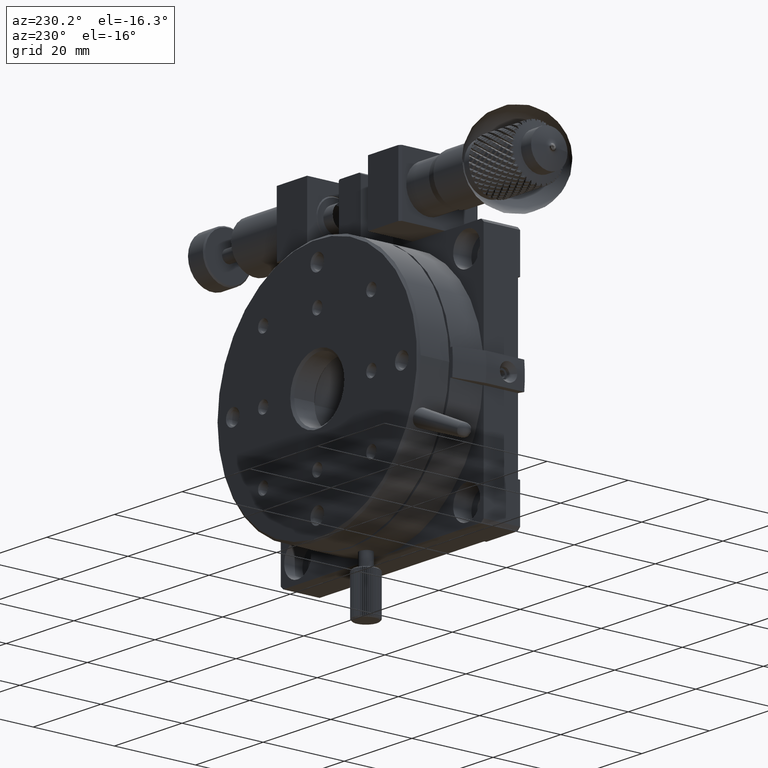
[diagram: clean part render]
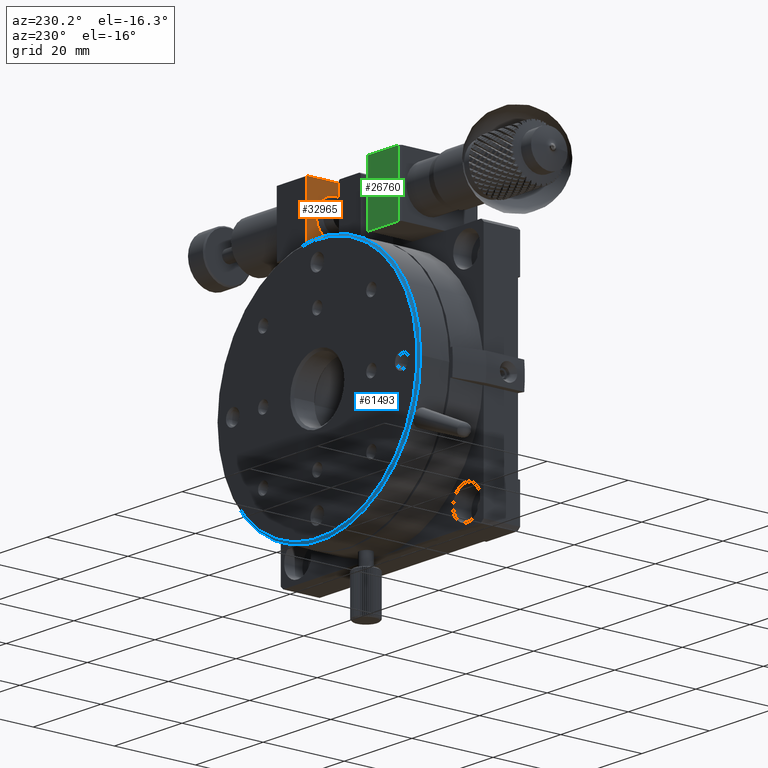
[diagram: same view with three faces highlighted in distinct colors, each labeled with its STEP entity id]
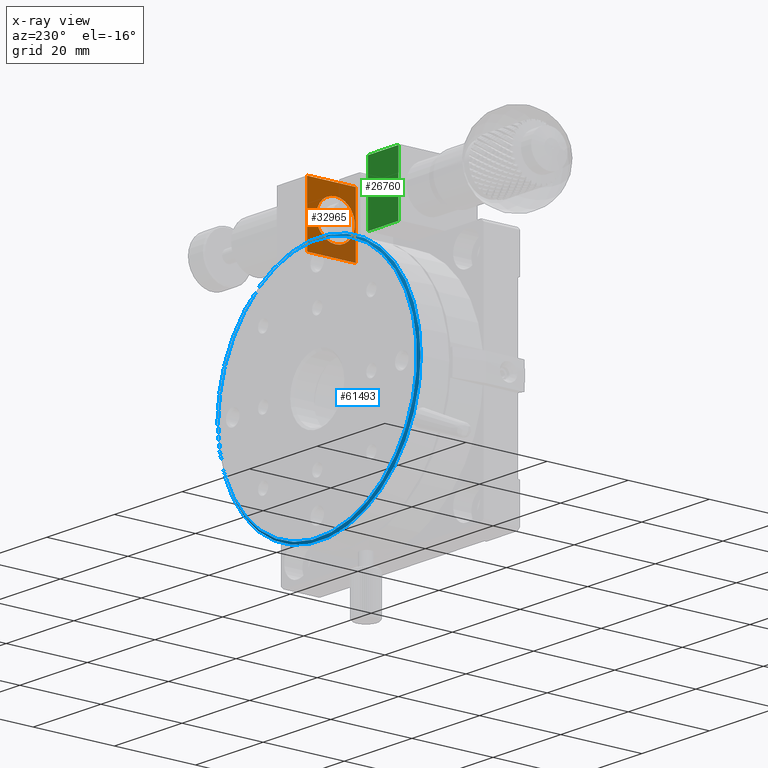
[diagram: x-ray of the same camera — body ghosted, the three highlighted faces saturated]
A machine part, auxiliary view with three faces highlighted in distinct colors.
The next image is the same camera in x-ray (body ghosted, the three faces saturated) — at least one of them is partly hidden behind the body in this view.
Their STEP definitions:

[orange] entity #32965 — the highlighted planar face has unit normal (1, 0, 0).
#956 = ORIENTED_EDGE ( 'NONE', *, *, #91410, .F. ) ;
#7555 = CARTESIAN_POINT ( 'NONE',  ( 39.00000000000000000, 13.00000000000000178, 7.500000000000000000 ) ) ;
#8267 = DIRECTION ( 'NONE',  ( -0.000000000000000000, -0.000000000000000000, 1.000000000000000000 ) ) ;
#9976 = VECTOR ( 'NONE', #70197, 1000.000000000000000 ) ;
#12858 = CARTESIAN_POINT ( 'NONE',  ( 39.00000000000000000, 8.000000000000000000, 0.000000000000000000 ) ) ;
#22511 = CARTESIAN_POINT ( 'NONE',  ( 39.00000000000000000, 8.000000000000000000, 15.00000000000000000 ) ) ;
#23106 = VERTEX_POINT ( 'NONE', #37156 ) ;
#27521 = CARTESIAN_POINT ( 'NONE',  ( 39.00000000000000000, 8.000000000000000000, 15.00000000000000000 ) ) ;
#28959 = FACE_BOUND ( 'NONE', #89245, .T. ) ;
#29871 = DIRECTION ( 'NONE',  ( 1.000000000000000000, 0.000000000000000000, 0.000000000000000000 ) ) ;
#32662 = VERTEX_POINT ( 'NONE', #12858 ) ;
#32965 = ADVANCED_FACE ( 'NONE', ( #35940, #28959 ), #85580, .F. ) ;
#33959 = EDGE_CURVE ( 'NONE', #63933, #23106, #51982, .T. ) ;
#35923 = ORIENTED_EDGE ( 'NONE', *, *, #75229, .F. ) ;
#35940 = FACE_OUTER_BOUND ( 'NONE', #78564, .T. ) ;
#36237 = CARTESIAN_POINT ( 'NONE',  ( 39.00000000000000000, 20.00000000000000000, 0.000000000000000000 ) ) ;
#36907 = CARTESIAN_POINT ( 'NONE',  ( 39.00000000000000000, 0.000000000000000000, 15.00000000000000000 ) ) ;
#37112 = AXIS2_PLACEMENT_3D ( 'NONE', #7555, #57197, #37223 ) ;
#37156 = CARTESIAN_POINT ( 'NONE',  ( 39.00000000000000000, 20.00000000000000000, 0.000000000000000000 ) ) ;
#37223 = DIRECTION ( 'NONE',  ( 0.000000000000000000, 0.000000000000000000, -1.000000000000000000 ) ) ;
#39137 = LINE ( 'NONE', #27521, #9976 ) ;
#44689 = AXIS2_PLACEMENT_3D ( 'NONE', #57719, #29871, #58161 ) ;
#44869 = ORIENTED_EDGE ( 'NONE', *, *, #82237, .F. ) ;
#45004 = DIRECTION ( 'NONE',  ( -0.000000000000000000, 1.000000000000000000, 0.000000000000000000 ) ) ;
#51597 = CARTESIAN_POINT ( 'NONE',  ( 39.00000000000000000, 13.00000000000000178, 2.750000000000000000 ) ) ;
#51982 = LINE ( 'NONE', #36237, #60920 ) ;
#54965 = CARTESIAN_POINT ( 'NONE',  ( 39.00000000000000000, 20.00000000000000000, 15.00000000000000000 ) ) ;
#56623 = CARTESIAN_POINT ( 'NONE',  ( 39.00000000000000000, 20.00000000000000000, 0.000000000000000000 ) ) ;
#56664 = VECTOR ( 'NONE', #73510, 1000.000000000000000 ) ;
#57197 = DIRECTION ( 'NONE',  ( -1.000000000000000000, -0.000000000000000000, -0.000000000000000000 ) ) ;
#57719 = CARTESIAN_POINT ( 'NONE',  ( 39.00000000000000000, 20.00000000000000000, 15.00000000000000000 ) ) ;
#57789 = VECTOR ( 'NONE', #8267, 1000.000000000000000 ) ;
#58161 = DIRECTION ( 'NONE',  ( 0.000000000000000000, 0.000000000000000000, -1.000000000000000000 ) ) ;
#60920 = VECTOR ( 'NONE', #45004, 1000.000000000000000 ) ;
#61205 = CARTESIAN_POINT ( 'NONE',  ( 39.00000000000000000, 9.000000000000001776, 0.000000000000000000 ) ) ;
#63584 = VERTEX_POINT ( 'NONE', #54965 ) ;
#63933 = VERTEX_POINT ( 'NONE', #61205 ) ;
#65080 = VERTEX_POINT ( 'NONE', #22511 ) ;
#65657 = LINE ( 'NONE', #36907, #56664 ) ;
#67396 = EDGE_CURVE ( 'NONE', #32662, #65080, #39137, .T. ) ;
#69625 = LINE ( 'NONE', #56623, #83028 ) ;
#69990 = ORIENTED_EDGE ( 'NONE', *, *, #85010, .F. ) ;
#70068 = DIRECTION ( 'NONE',  ( -0.000000000000000000, 1.000000000000000000, 0.000000000000000000 ) ) ;
#70197 = DIRECTION ( 'NONE',  ( -0.000000000000000000, 0.000000000000000000, 1.000000000000000000 ) ) ;
#73510 = DIRECTION ( 'NONE',  ( 0.000000000000000000, -1.000000000000000000, -0.000000000000000000 ) ) ;
#74138 = ORIENTED_EDGE ( 'NONE', *, *, #67396, .T. ) ;
#75229 = EDGE_CURVE ( 'NONE', #23106, #63584, #85324, .T. ) ;
#77126 = CIRCLE ( 'NONE', #37112, 4.750000000000000000 ) ;
#77889 = CARTESIAN_POINT ( 'NONE',  ( 39.00000000000000000, 20.00000000000000000, 15.00000000000000000 ) ) ;
#78564 = EDGE_LOOP ( 'NONE', ( #44869, #74138, #956, #35923, #82134 ) ) ;
#82134 = ORIENTED_EDGE ( 'NONE', *, *, #33959, .F. ) ;
#82237 = EDGE_CURVE ( 'NONE', #32662, #63933, #69625, .T. ) ;
#83028 = VECTOR ( 'NONE', #70068, 1000.000000000000000 ) ;
#85010 = EDGE_CURVE ( 'NONE', #88227, #88227, #77126, .T. ) ;
#85324 = LINE ( 'NONE', #77889, #57789 ) ;
#85580 = PLANE ( 'NONE',  #44689 ) ;
#88227 = VERTEX_POINT ( 'NONE', #51597 ) ;
#89245 = EDGE_LOOP ( 'NONE', ( #69990 ) ) ;
#91410 = EDGE_CURVE ( 'NONE', #63584, #65080, #65657, .T. ) ;

[blue] entity #61493 — the highlighted conical surface has half-angle 45 deg.
#2999 = AXIS2_PLACEMENT_3D ( 'NONE', #13391, #69988, #27769 ) ;
#7076 = CARTESIAN_POINT ( 'NONE',  ( 59.50000000000000711, 24.99999999999999645, -30.00000000000000000 ) ) ;
#7552 = DIRECTION ( 'NONE',  ( 0.000000000000000000, -1.000000000000000000, 0.000000000000000000 ) ) ;
#9626 = EDGE_LOOP ( 'NONE', ( #31565 ) ) ;
#11108 = ORIENTED_EDGE ( 'NONE', *, *, #77148, .T. ) ;
#13391 = CARTESIAN_POINT ( 'NONE',  ( 30.00000000000000000, 24.99999999999999645, -30.00000000000000000 ) ) ;
#14509 = CARTESIAN_POINT ( 'NONE',  ( 30.00000000000000000, 24.50000000000000000, -30.00000000000000000 ) ) ;
#17258 = DIRECTION ( 'NONE',  ( -0.000000000000000000, 1.000000000000000000, -0.000000000000000000 ) ) ;
#21466 = FACE_OUTER_BOUND ( 'NONE', #9626, .T. ) ;
#22847 = DIRECTION ( 'NONE',  ( 1.000000000000000000, 0.000000000000000000, 0.000000000000000000 ) ) ;
#25660 = EDGE_CURVE ( 'NONE', #68589, #68589, #28906, .T. ) ;
#27769 = DIRECTION ( 'NONE',  ( 1.000000000000000000, 0.000000000000000000, 0.000000000000000000 ) ) ;
#28483 = EDGE_LOOP ( 'NONE', ( #11108 ) ) ;
#28906 = CIRCLE ( 'NONE', #67439, 30.00000000000000000 ) ;
#31565 = ORIENTED_EDGE ( 'NONE', *, *, #25660, .T. ) ;
#35871 = DIRECTION ( 'NONE',  ( 1.000000000000000000, 0.000000000000000000, 0.000000000000000000 ) ) ;
#44647 = CARTESIAN_POINT ( 'NONE',  ( 30.00000000000000000, 24.50000000000000000, -30.00000000000000000 ) ) ;
#47823 = AXIS2_PLACEMENT_3D ( 'NONE', #14509, #7552, #35871 ) ;
#61493 = ADVANCED_FACE ( 'NONE', ( #21466, #78077 ), #87865, .T. ) ;
#67439 = AXIS2_PLACEMENT_3D ( 'NONE', #44647, #17258, #22847 ) ;
#68589 = VERTEX_POINT ( 'NONE', #81136 ) ;
#69988 = DIRECTION ( 'NONE',  ( 0.000000000000000000, -1.000000000000000000, 0.000000000000000000 ) ) ;
#77059 = CIRCLE ( 'NONE', #2999, 29.50000000000000711 ) ;
#77148 = EDGE_CURVE ( 'NONE', #91547, #91547, #77059, .T. ) ;
#78077 = FACE_BOUND ( 'NONE', #28483, .T. ) ;
#81136 = CARTESIAN_POINT ( 'NONE',  ( 60.00000000000000000, 24.50000000000000000, -30.00000000000000000 ) ) ;
#87865 = CONICAL_SURFACE ( 'NONE', #47823, 30.00000000000000000, 0.7853981633974447263 ) ;
#91547 = VERTEX_POINT ( 'NONE', #7076 ) ;

[green] entity #26760 — the highlighted planar face has unit normal (0, -1, 0).
#3173 = VECTOR ( 'NONE', #22094, 1000.000000000000000 ) ;
#4182 = VERTEX_POINT ( 'NONE', #9875 ) ;
#7376 = CARTESIAN_POINT ( 'NONE',  ( 21.00000000000000000, 20.00000000000000000, 15.00000000000000000 ) ) ;
#9875 = CARTESIAN_POINT ( 'NONE',  ( 12.00000000000000000, 20.00000000000000000, 0.000000000000000000 ) ) ;
#11910 = CARTESIAN_POINT ( 'NONE',  ( 21.00000000000000000, 20.00000000000000000, 15.00000000000000000 ) ) ;
#12179 = ORIENTED_EDGE ( 'NONE', *, *, #54883, .F. ) ;
#12890 = VECTOR ( 'NONE', #61869, 1000.000000000000000 ) ;
#20509 = PLANE ( 'NONE',  #82270 ) ;
#22077 = VERTEX_POINT ( 'NONE', #91749 ) ;
#22094 = DIRECTION ( 'NONE',  ( -1.000000000000000000, -0.000000000000000000, 0.000000000000000000 ) ) ;
#26760 = ADVANCED_FACE ( 'NONE', ( #64104 ), #20509, .F. ) ;
#26844 = CARTESIAN_POINT ( 'NONE',  ( 21.00000000000000000, 20.00000000000000000, 0.000000000000000000 ) ) ;
#33381 = EDGE_CURVE ( 'NONE', #41600, #22077, #44812, .T. ) ;
#41600 = VERTEX_POINT ( 'NONE', #7376 ) ;
#44812 = LINE ( 'NONE', #73568, #3173 ) ;
#45275 = VECTOR ( 'NONE', #67355, 1000.000000000000000 ) ;
#54883 = EDGE_CURVE ( 'NONE', #22077, #4182, #55377, .T. ) ;
#55377 = LINE ( 'NONE', #68365, #12890 ) ;
#55789 = CARTESIAN_POINT ( 'NONE',  ( 21.00000000000000000, 20.00000000000000000, 15.00000000000000000 ) ) ;
#61869 = DIRECTION ( 'NONE',  ( 0.000000000000000000, -0.000000000000000000, -1.000000000000000000 ) ) ;
#64104 = FACE_OUTER_BOUND ( 'NONE', #75186, .T. ) ;
#67355 = DIRECTION ( 'NONE',  ( 1.000000000000000000, 0.000000000000000000, 0.000000000000000000 ) ) ;
#68159 = ORIENTED_EDGE ( 'NONE', *, *, #70842, .F. ) ;
#68365 = CARTESIAN_POINT ( 'NONE',  ( 12.00000000000000000, 20.00000000000000000, 15.00000000000000000 ) ) ;
#68971 = DIRECTION ( 'NONE',  ( -0.000000000000000000, 0.000000000000000000, 1.000000000000000000 ) ) ;
#70484 = VERTEX_POINT ( 'NONE', #26844 ) ;
#70728 = ORIENTED_EDGE ( 'NONE', *, *, #74143, .F. ) ;
#70835 = VECTOR ( 'NONE', #68971, 1000.000000000000000 ) ;
#70842 = EDGE_CURVE ( 'NONE', #70484, #41600, #75482, .T. ) ;
#71497 = DIRECTION ( 'NONE',  ( 0.000000000000000000, -1.000000000000000000, 0.000000000000000000 ) ) ;
#73568 = CARTESIAN_POINT ( 'NONE',  ( 0.000000000000000000, 20.00000000000000000, 15.00000000000000000 ) ) ;
#74143 = EDGE_CURVE ( 'NONE', #4182, #70484, #75239, .T. ) ;
#75186 = EDGE_LOOP ( 'NONE', ( #12179, #87581, #68159, #70728 ) ) ;
#75239 = LINE ( 'NONE', #81722, #45275 ) ;
#75482 = LINE ( 'NONE', #11910, #70835 ) ;
#81722 = CARTESIAN_POINT ( 'NONE',  ( 21.00000000000000000, 20.00000000000000000, 0.000000000000000000 ) ) ;
#82270 = AXIS2_PLACEMENT_3D ( 'NONE', #55789, #71497, #91509 ) ;
#87581 = ORIENTED_EDGE ( 'NONE', *, *, #33381, .F. ) ;
#91509 = DIRECTION ( 'NONE',  ( 0.000000000000000000, -0.000000000000000000, -1.000000000000000000 ) ) ;
#91749 = CARTESIAN_POINT ( 'NONE',  ( 12.00000000000000000, 20.00000000000000000, 15.00000000000000000 ) ) ;